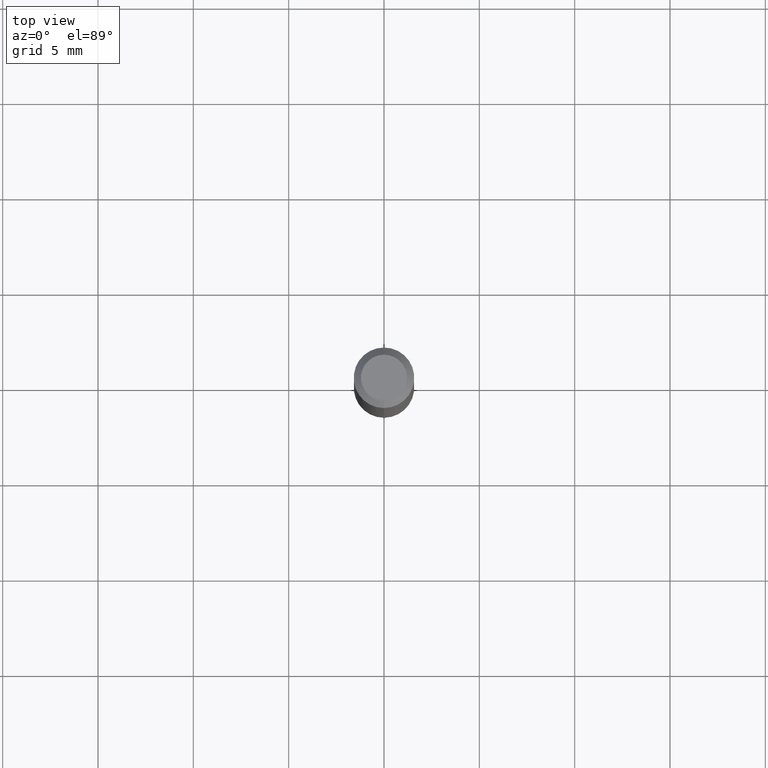
[diagram: clean part render]
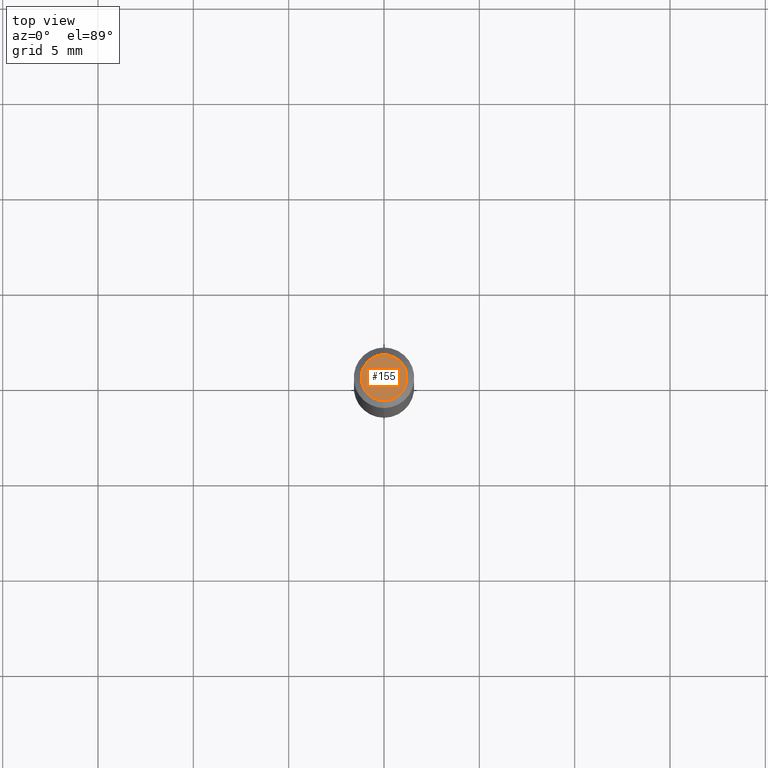
[diagram: same view with one face highlighted and labeled with its STEP entity id]
A machine part, top view. The second image highlights one B-rep face of the part: STEP entity #155.
In plain terms, the highlighted planar face has unit normal (0, -0, -1).
Its self-contained STEP definition (entity closure, byte-faithful):
#18 = ORIENTED_EDGE ( 'NONE', *, *, #518, .T. ) ;
#33 = CIRCLE ( 'NONE', #308, 0.04749999999999999362 ) ;
#60 = VERTEX_POINT ( 'NONE', #554 ) ;
#83 = DIRECTION ( 'NONE',  ( 2.444369529050259048E-29, -3.493055566267258911E-15, -1.000000000000000000 ) ) ;
#155 = ADVANCED_FACE ( 'NONE', ( #298 ), #263, .F. ) ;
#184 = DIRECTION ( 'NONE',  ( -2.444369529050259608E-29, 3.493055566267258516E-15, 1.000000000000000000 ) ) ;
#208 = AXIS2_PLACEMENT_3D ( 'NONE', #469, #83, #517 ) ;
#243 = DIRECTION ( 'NONE',  ( -2.444369529050259608E-29, 3.493055566267258516E-15, 1.000000000000000000 ) ) ;
#263 = PLANE ( 'NONE',  #208 ) ;
#288 = CARTESIAN_POINT ( 'NONE',  ( 2.015560089653394899E-45, -2.895313811912280609E-31, -8.267225626890004316E-17 ) ) ;
#298 = FACE_OUTER_BOUND ( 'NONE', #536, .T. ) ;
#308 = AXIS2_PLACEMENT_3D ( 'NONE', #288, #243, #412 ) ;
#315 = EDGE_CURVE ( 'NONE', #528, #60, #549, .T. ) ;
#334 = CARTESIAN_POINT ( 'NONE',  ( 3.840629472727447874E-16, 0.04749999999999999362, -2.485923956665947867E-16 ) ) ;
#347 = DIRECTION ( 'NONE',  ( -6.982962677686266711E-15, -1.000000000000000000, 3.493055566267258516E-15 ) ) ;
#412 = DIRECTION ( 'NONE',  ( -6.982962677686266711E-15, -1.000000000000000000, 3.493055566267258516E-15 ) ) ;
#429 = CARTESIAN_POINT ( 'NONE',  ( 2.015560089653394899E-45, -2.895313811912280609E-31, -8.267225626890004316E-17 ) ) ;
#469 = CARTESIAN_POINT ( 'NONE',  ( 3.316907271900976096E-16, 0.04749999999999999362, 3.178043191347827882E-17 ) ) ;
#508 = ORIENTED_EDGE ( 'NONE', *, *, #315, .T. ) ;
#517 = DIRECTION ( 'NONE',  ( 6.982962677686265922E-15, 1.000000000000000000, -3.493055566267258911E-15 ) ) ;
#518 = EDGE_CURVE ( 'NONE', #60, #528, #33, .T. ) ;
#527 = AXIS2_PLACEMENT_3D ( 'NONE', #429, #184, #347 ) ;
#528 = VERTEX_POINT ( 'NONE', #334 ) ;
#536 = EDGE_LOOP ( 'NONE', ( #508, #18 ) ) ;
#549 = CIRCLE ( 'NONE', #527, 0.04749999999999999362 ) ;
#554 = CARTESIAN_POINT ( 'NONE',  ( -3.773273898774340269E-16, -0.04749999999999999362, 8.324788312879471270E-17 ) ) ;